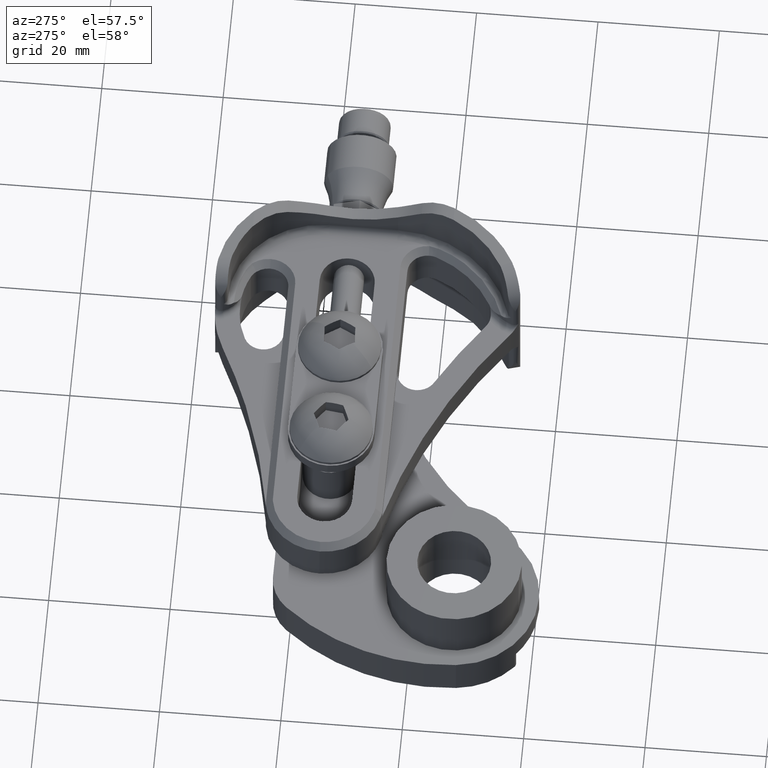
[diagram: clean part render]
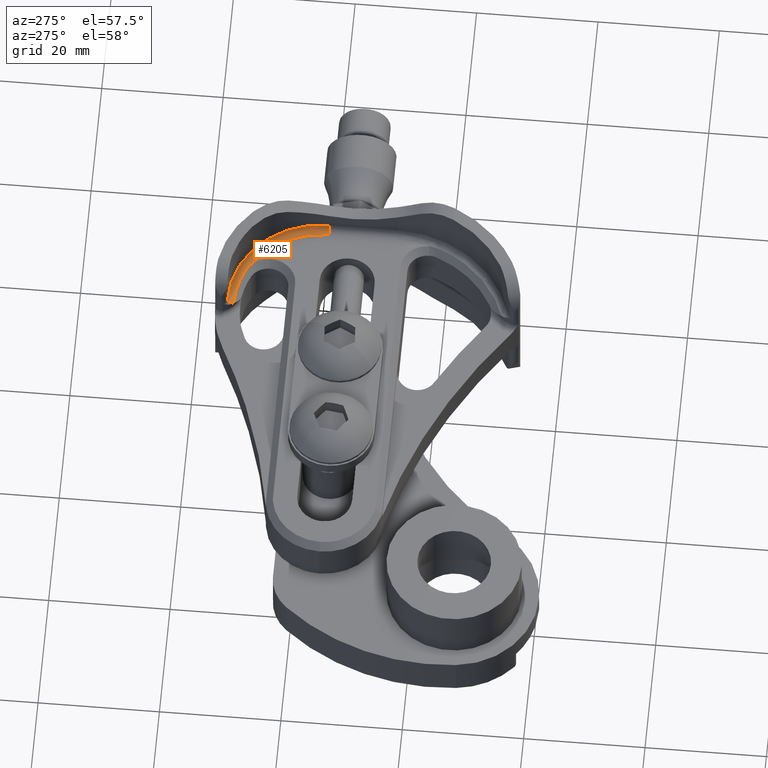
[diagram: same view with one face highlighted and labeled with its STEP entity id]
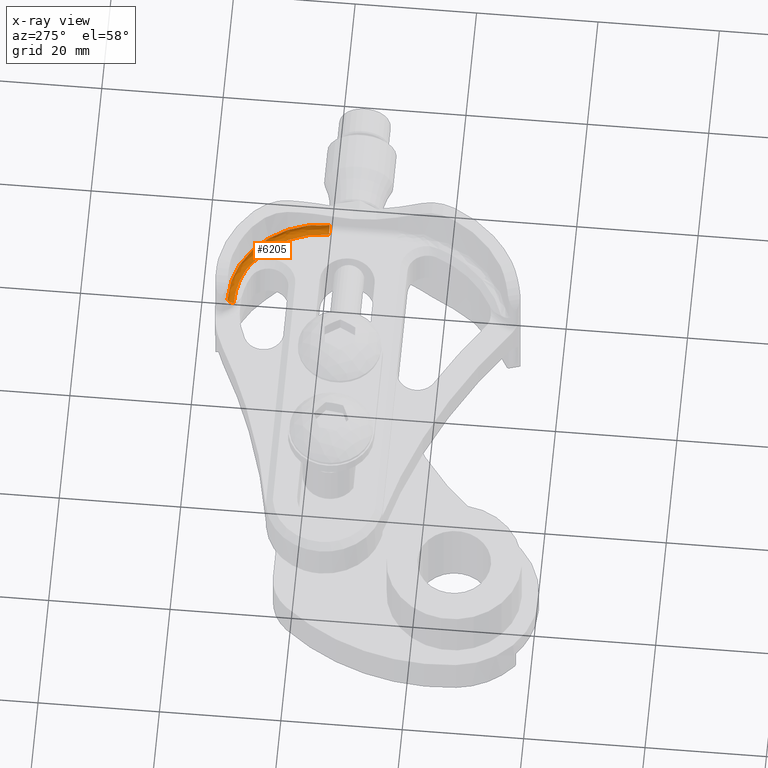
[diagram: x-ray of the same camera — body ghosted, the highlighted face saturated]
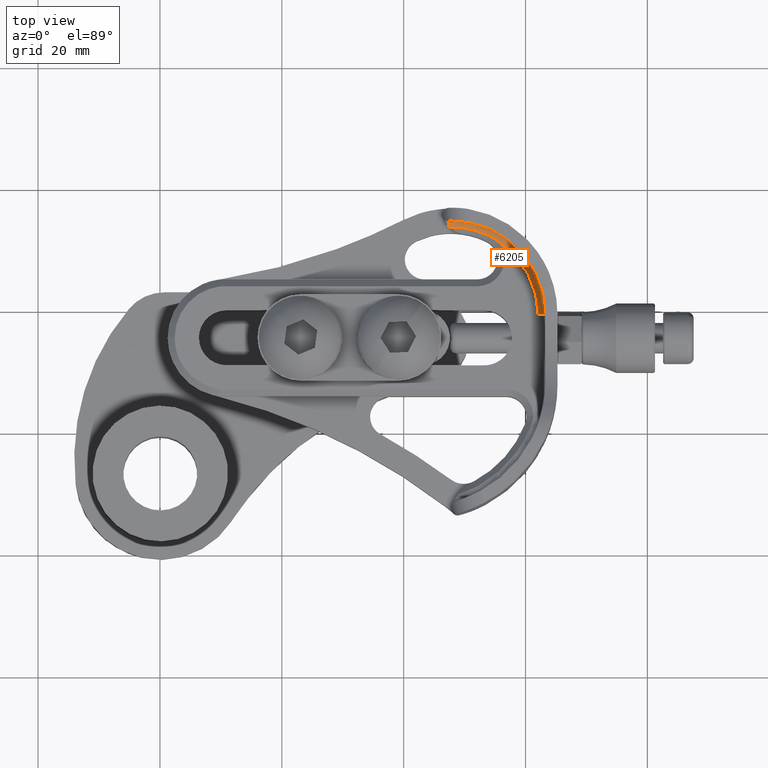
[diagram: same view with one face highlighted and labeled with its STEP entity id]
A machine part, auxiliary view. The second image highlights one B-rep face of the part: STEP entity #6205.
The next image is the same camera in x-ray: the body ghosted, the highlighted face saturated — about 0% of this face is hidden behind the body in this view.
A second angle (top view) of the same face is appended — the face is thin or edge-on in the first view.
In plain terms, the highlighted face is a freeform B-spline surface patch.
Its self-contained STEP definition (entity closure, byte-faithful):
#110 = B_SPLINE_CURVE_WITH_KNOTS ( 'NONE', 3,
 ( #2628, #722, #5806, #2684 ),
 .UNSPECIFIED., .F., .F.,
 ( 4, 4 ),
 ( 0.0001848906432942774120, 0.0003199487554320211576 ),
 .UNSPECIFIED. ) ;
#140 = CARTESIAN_POINT ( 'NONE',  ( 0.6110575952830112900, 0.7122933492813074974, -0.1772786159493408564 ) ) ;
#232 = CARTESIAN_POINT ( 'NONE',  ( 0.3655045551408723226, 0.7189274071098005203, -0.1769999999999998519 ) ) ;
#299 = CARTESIAN_POINT ( 'NONE',  ( 0.08000000182567099105, 0.5111744274041557512, -0.1956396103067890857 ) ) ;
#489 = CARTESIAN_POINT ( 'NONE',  ( 0.1418233401785937431, 0.2848447784593539089, -0.1769999999999998241 ) ) ;
#517 = CARTESIAN_POINT ( 'NONE',  ( 0.3872749570267247088, 0.6239757236011236330, -0.1769999846692458245 ) ) ;
#521 = CARTESIAN_POINT ( 'NONE',  ( 0.3887638524032760445, 0.6252491938599459287, -0.1769999156328624923 ) ) ;
#554 = CARTESIAN_POINT ( 'NONE',  ( 0.4126504845547066536, 0.6432344033503313296, -0.1771388450700699946 ) ) ;
#671 = ORIENTED_EDGE ( 'NONE', *, *, #5734, .F. ) ;
#700 = EDGE_CURVE ( 'NONE', #2265, #1889, #2833, .T. ) ;
#722 = CARTESIAN_POINT ( 'NONE',  ( 0.6991307758144467144, 0.7169240676627751663, -0.1774178913499569188 ) ) ;
#903 = EDGE_CURVE ( 'NONE', #1343, #5121, #1043, .T. ) ;
#964 = CARTESIAN_POINT ( 'NONE',  ( 0.4456762217043021557, 0.6616939892146036506, -0.1772786285105649451 ) ) ;
#1043 =( BOUNDED_CURVE ( )  B_SPLINE_CURVE ( 3, ( #7816, #1969, #7612, #9309 ),
 .UNSPECIFIED., .F., .T. ) 
 B_SPLINE_CURVE_WITH_KNOTS ( ( 4, 4 ),
 ( 0.05855537243316093904, 1.000000000000000000 ),
 .UNSPECIFIED. ) 
 CURVE ( )  GEOMETRIC_REPRESENTATION_ITEM ( )  RATIONAL_B_SPLINE_CURVE ( ( 1.000000000000000000, 0.8487677595076335013, 0.8487677595076335013, 1.000000000000000000 ) ) 
 REPRESENTATION_ITEM ( '' )  );
#1071 = CARTESIAN_POINT ( 'NONE',  ( 0.7025125271652632453, 0.7556104757034906028, -0.2219999999999999751 ) ) ;
#1107 = CARTESIAN_POINT ( 'NONE',  ( 0.7016179154215247404, 0.7194199894248605176, -0.1778685244643627983 ) ) ;
#1262 = CARTESIAN_POINT ( 'NONE',  ( 0.1716010560122749051, 0.3776153064749860344, -0.1769999999999997409 ) ) ;
#1331 = CARTESIAN_POINT ( 'NONE',  ( 0.4348197168995914796, 0.6563722942638059443, -0.1772664794885434325 ) ) ;
#1343 = VERTEX_POINT ( 'NONE', #1107 ) ;
#1621 = VERTEX_POINT ( 'NONE', #1785 ) ;
#1766 = CARTESIAN_POINT ( 'NONE',  ( 0.7014004881059123786, 0.7106242181448706452, -0.1769999999999998519 ) ) ;
#1785 = CARTESIAN_POINT ( 'NONE',  ( 0.3872749570267247088, 0.6239757236011236330, -0.1769999846692458245 ) ) ;
#1804 = CARTESIAN_POINT ( 'NONE',  ( 0.08000000182567101881, 0.5111744274041557512, -0.2219999999999999751 ) ) ;
#1889 = VERTEX_POINT ( 'NONE', #9489 ) ;
#1911 =( BOUNDED_SURFACE ( )  B_SPLINE_SURFACE ( 3, 3, ( 
 ( #1766, #232, #6984, #2538 ),
 ( #7695, #3284, #8435, #4057 ),
 ( #9148, #4794, #299, #5541 ),
 ( #1071, #6285, #1804, #7015 ) ),
 .UNSPECIFIED., .F., .F., .T. ) 
 B_SPLINE_SURFACE_WITH_KNOTS ( ( 4, 4 ),
 ( 4, 4 ),
 ( 0.0000000000000000000, 1.000000000000000000 ),
 ( 0.0000000000000000000, 1.000000000000000000 ),
 .UNSPECIFIED. ) 
 GEOMETRIC_REPRESENTATION_ITEM ( )  RATIONAL_B_SPLINE_SURFACE ( (
 ( 1.000000000000000000, 0.7988767489726958937, 0.7988767489726958937, 1.000000000000000000),
 ( 0.8047378541243641603, 0.6428863606781356488, 0.6428863606781356488, 0.8047378541243641603),
 ( 0.8047378541243641603, 0.6428863606781356488, 0.6428863606781356488, 0.8047378541243641603),
 ( 1.000000000000000000, 0.7988767489726958937, 0.7988767489726958937, 1.000000000000000000) ) ) 
 REPRESENTATION_ITEM ( '' )  SURFACE ( )  );
#1967 = CARTESIAN_POINT ( 'NONE',  ( 0.1250000009545228774, 0.1482960010763820224, -0.1769999999999997686 ) ) ;
#1969 = CARTESIAN_POINT ( 'NONE',  ( 0.7021611856023247666, 0.7413973579998976993, -0.1822516578347593841 ) ) ;
#1997 = CARTESIAN_POINT ( 'NONE',  ( 0.2259155338634215582, 0.4713708872943113692, -0.1769999999999997686 ) ) ;
#2071 = CARTESIAN_POINT ( 'NONE',  ( 0.4456762217043021557, 0.6616939892146036506, -0.1772786285105649451 ) ) ;
#2265 = VERTEX_POINT ( 'NONE', #6779 ) ;
#2354 = CIRCLE ( 'NONE', #4295, 0.6074999989358004227 ) ;
#2373 = EDGE_LOOP ( 'NONE', ( #671, #8076, #8920, #6759, #9455, #8044, #8611 ) ) ;
#2538 = CARTESIAN_POINT ( 'NONE',  ( 0.1250000009545239876, 0.1482960010763671177, -0.1769999999999998519 ) ) ;
#2628 = CARTESIAN_POINT ( 'NONE',  ( 0.6978554059194794768, 0.7157010064617147505, -0.1772785840399838941 ) ) ;
#2684 = CARTESIAN_POINT ( 'NONE',  ( 0.7016179154215247404, 0.7194199894248605176, -0.1778685244643627983 ) ) ;
#2770 = CARTESIAN_POINT ( 'NONE',  ( 0.2654710617544939200, 0.5202725808539676589, -0.1769999999999997686 ) ) ;
#2776 = CARTESIAN_POINT ( 'NONE',  ( 0.7025125235560568671, 0.7556103432101091144, -0.2219999999999999751 ) ) ;
#2833 = B_SPLINE_CURVE_WITH_KNOTS ( 'NONE', 3,
 ( #964, #3779, #5476, #140, #3610, #7339 ),
 .UNSPECIFIED., .F., .F.,
 ( 4, 2, 4 ),
 ( 0.0000000000000000000, 0.4930464435562875725, 0.9860928871125751449 ),
 .UNSPECIFIED. ) ;
#3080 = DIRECTION ( 'NONE',  ( 2.400658616341641865E-09, 1.000000000000000000, 5.183062666334923523E-30 ) ) ;
#3122 = B_SPLINE_CURVE_WITH_KNOTS ( 'NONE', 3,
 ( #4957, #521, #9395, #5050, #554, #5808, #1331, #6555, #2071 ),
 .UNSPECIFIED., .F., .F.,
 ( 4, 1, 1, 1, 1, 1, 4 ),
 ( 0.0000000000000000000, 0.08623794309435928174, 0.2735254163143328587, 0.4608128895344189013, 0.6481003627545049994, 0.8353878359744785209, 1.000000000000000000 ),
 .UNSPECIFIED. ) ;
#3284 = CARTESIAN_POINT ( 'NONE',  ( 0.3504149099513740873, 0.7456688583067438980, -0.1769999999999997409 ) ) ;
#3286 = DIRECTION ( 'NONE',  ( 1.942569979106741571E-29, -5.152247787224733354E-30, -1.000000000000000000 ) ) ;
#3486 = CARTESIAN_POINT ( 'NONE',  ( 0.1334199375735846960, 0.2465359420402406521, -0.1769999999999997686 ) ) ;
#3521 = CARTESIAN_POINT ( 'NONE',  ( 0.2756112984583670156, 0.5313847019236975777, -0.1769999999999997686 ) ) ;
#3610 = CARTESIAN_POINT ( 'NONE',  ( 0.6545011707472933038, 0.7164927342736830962, -0.1772786159493409119 ) ) ;
#3760 = CIRCLE ( 'NONE', #5618, 0.04500000000000006772 ) ;
#3779 = CARTESIAN_POINT ( 'NONE',  ( 0.4849040914349517228, 0.6801713125216605205, -0.1772786159493408842 ) ) ;
#4057 = CARTESIAN_POINT ( 'NONE',  ( 0.09863961126131308432, 0.1482960011396495525, -0.1769999999999997409 ) ) ;
#4237 = CARTESIAN_POINT ( 'NONE',  ( 0.1397652281771885052, 0.2763946295576340528, -0.1769999999999997686 ) ) ;
#4270 = CARTESIAN_POINT ( 'NONE',  ( 0.2787364912048845289, 0.5347165508185062199, -0.1769999999999997409 ) ) ;
#4295 = AXIS2_PLACEMENT_3D ( 'NONE', #7700, #3286, #8437 ) ;
#4552 = CARTESIAN_POINT ( 'NONE',  ( 0.08000000095452376725, 0.1482960011843968140, -0.2219999999999999751 ) ) ;
#4794 = CARTESIAN_POINT ( 'NONE',  ( 0.3397449195121809984, 0.7645779197868713961, -0.1956396103067890857 ) ) ;
#4957 = CARTESIAN_POINT ( 'NONE',  ( 0.3872749570267247088, 0.6239757236011236330, -0.1769999846692458245 ) ) ;
#4991 = CARTESIAN_POINT ( 'NONE',  ( 0.1414829713363144059, 0.2834773082686122270, -0.1769999999999997409 ) ) ;
#5018 = CARTESIAN_POINT ( 'NONE',  ( 0.3477639799474243620, 0.5990343125183597017, -0.1769999999999997686 ) ) ;
#5050 = CARTESIAN_POINT ( 'NONE',  ( 0.4019365948376073527, 0.6357533321590123077, -0.1770567917899504573 ) ) ;
#5121 = VERTEX_POINT ( 'NONE', #2776 ) ;
#5476 = CARTESIAN_POINT ( 'NONE',  ( 0.5262571094727247489, 0.6941322216110640264, -0.1772786159493409397 ) ) ;
#5541 = CARTESIAN_POINT ( 'NONE',  ( 0.08000000095452390603, 0.1482960011843968418, -0.1956396103067890857 ) ) ;
#5618 = AXIS2_PLACEMENT_3D ( 'NONE', #7501, #3080, #8243 ) ;
#5734 = EDGE_CURVE ( 'NONE', #1889, #1343, #110, .T. ) ;
#5737 = CARTESIAN_POINT ( 'NONE',  ( 0.1540406378659223141, 0.3331102314543162302, -0.1769999999999998241 ) ) ;
#5763 = VERTEX_POINT ( 'NONE', #9167 ) ;
#5806 = CARTESIAN_POINT ( 'NONE',  ( 0.7003849925550544864, 0.7181639235248541420, -0.1776121056761641448 ) ) ;
#5808 = CARTESIAN_POINT ( 'NONE',  ( 0.4237877132963828730, 0.6502089180028113313, -0.1772163234403916210 ) ) ;
#5914 = EDGE_CURVE ( 'NONE', #1621, #2265, #3122, .T. ) ;
#6086 = B_SPLINE_CURVE_WITH_KNOTS ( 'NONE', 3,
 ( #1967, #6454, #7906, #3486, #8637, #4237, #9326, #4991, #489, #5737, #1262, #6488, #1997, #7208, #2770, #7938, #3521, #8657, #4270, #9351, #5018, #517 ),
 .UNSPECIFIED., .F., .F.,
 ( 4, 1, 1, 1, 1, 2, 2, 2, 1, 1, 1, 1, 2, 2, 4 ),
 ( 0.0000000000000000000, 0.1250000000000018874, 0.1875000000000028311, 0.2187500000000033029, 0.2343750000000035527, 0.2421875000000035805, 0.2500000000000036082, 0.5000000000000027756, 0.6250000000000024425, 0.6875000000000022204, 0.7187500000000022204, 0.7343750000000021094, 0.7421875000000022204, 0.7500000000000023315, 1.000000000000000000 ),
 .UNSPECIFIED. ) ;
#6205 = ADVANCED_FACE ( 'NONE', ( #9144 ), #1911, .F. ) ;
#6285 = CARTESIAN_POINT ( 'NONE',  ( 0.3397449195121811094, 0.7645779197868715071, -0.2219999999999999751 ) ) ;
#6454 = CARTESIAN_POINT ( 'NONE',  ( 0.1250017198293032761, 0.1716650494077457956, -0.1769999999999998241 ) ) ;
#6488 = CARTESIAN_POINT ( 'NONE',  ( 0.2065697885076549500, 0.4410315885058591623, -0.1769999999999997686 ) ) ;
#6555 = CARTESIAN_POINT ( 'NONE',  ( 0.4421948597679026260, 0.6600515612804741528, -0.1772785793915767627 ) ) ;
#6759 = ORIENTED_EDGE ( 'NONE', *, *, #8247, .F. ) ;
#6779 = CARTESIAN_POINT ( 'NONE',  ( 0.4456762217043021557, 0.6616939892146036506, -0.1772786285105649451 ) ) ;
#6984 = CARTESIAN_POINT ( 'NONE',  ( 0.1250000017611416214, 0.4842945438253528079, -0.1769999999999998519 ) ) ;
#7015 = CARTESIAN_POINT ( 'NONE',  ( 0.08000000095452390603, 0.1482960011843968140, -0.2219999999999999751 ) ) ;
#7208 = CARTESIAN_POINT ( 'NONE',  ( 0.2517429835509482072, 0.5043712619836181466, -0.1769999999999997686 ) ) ;
#7339 = CARTESIAN_POINT ( 'NONE',  ( 0.6978554059194794768, 0.7157010064617147505, -0.1772785840399838941 ) ) ;
#7501 = CARTESIAN_POINT ( 'NONE',  ( 0.1250000009545239876, 0.1482960010763672565, -0.2219999999999999751 ) ) ;
#7612 = CARTESIAN_POINT ( 'NONE',  ( 0.7025125206144240408, 0.7556102106968611842, -0.1995832245335787680 ) ) ;
#7669 = EDGE_CURVE ( 'NONE', #8979, #5121, #2354, .T. ) ;
#7695 = CARTESIAN_POINT ( 'NONE',  ( 0.7020519055049914137, 0.7369765577023010827, -0.1769999999999997409 ) ) ;
#7700 = CARTESIAN_POINT ( 'NONE',  ( 0.6874999998903250642, 0.1482959997259969132, -0.2219999999999999751 ) ) ;
#7816 = CARTESIAN_POINT ( 'NONE',  ( 0.7016179154215247404, 0.7194199894248605176, -0.1778685244643627983 ) ) ;
#7906 = CARTESIAN_POINT ( 'NONE',  ( 0.1271522040311560686, 0.2064432565147078791, -0.1769999999999998519 ) ) ;
#7938 = CARTESIAN_POINT ( 'NONE',  ( 0.2725386891962116587, 0.5280735231705635524, -0.1769999999999997686 ) ) ;
#7996 = EDGE_CURVE ( 'NONE', #8979, #5763, #3760, .T. ) ;
#8044 = ORIENTED_EDGE ( 'NONE', *, *, #7669, .T. ) ;
#8076 = ORIENTED_EDGE ( 'NONE', *, *, #700, .F. ) ;
#8243 = DIRECTION ( 'NONE',  ( -1.000000000000000000, 2.400658472925691782E-09, 0.0000000000000000000 ) ) ;
#8247 = EDGE_CURVE ( 'NONE', #5763, #1621, #6086, .T. ) ;
#8435 = CARTESIAN_POINT ( 'NONE',  ( 0.09863961210573127247, 0.5000404150708059881, -0.1769999999999997409 ) ) ;
#8437 = DIRECTION ( 'NONE',  ( 1.000000000000000000, -2.810543208281717671E-17, 0.0000000000000000000 ) ) ;
#8611 = ORIENTED_EDGE ( 'NONE', *, *, #903, .F. ) ;
#8637 = CARTESIAN_POINT ( 'NONE',  ( 0.1374935131715304126, 0.2664618124448614456, -0.1769999999999997686 ) ) ;
#8657 = CARTESIAN_POINT ( 'NONE',  ( 0.2776693993159907170, 0.5335850250391871441, -0.1769999999999997686 ) ) ;
#8920 = ORIENTED_EDGE ( 'NONE', *, *, #5914, .F. ) ;
#8979 = VERTEX_POINT ( 'NONE', #4552 ) ;
#9144 = FACE_OUTER_BOUND ( 'NONE', #2373, .T. ) ;
#9148 = CARTESIAN_POINT ( 'NONE',  ( 0.7025125271652632453, 0.7556104757034906028, -0.1956396103067890857 ) ) ;
#9167 = CARTESIAN_POINT ( 'NONE',  ( 0.1250000009545228774, 0.1482960010763820224, -0.1769999999999997686 ) ) ;
#9309 = CARTESIAN_POINT ( 'NONE',  ( 0.7025125235560568671, 0.7556103432101091144, -0.2219999999999999751 ) ) ;
#9326 = CARTESIAN_POINT ( 'NONE',  ( 0.1407891618667584943, 0.2806450973010649608, -0.1769999999999998241 ) ) ;
#9351 = CARTESIAN_POINT ( 'NONE',  ( 0.3119196739742821078, 0.5696339582754501585, -0.1769999999999998241 ) ) ;
#9395 = CARTESIAN_POINT ( 'NONE',  ( 0.3935497092160272770, 0.6292481232643882816, -0.1770081478475828696 ) ) ;
#9455 = ORIENTED_EDGE ( 'NONE', *, *, #7996, .F. ) ;
#9489 = CARTESIAN_POINT ( 'NONE',  ( 0.6978554059194794768, 0.7157010064617147505, -0.1772785840399838941 ) ) ;